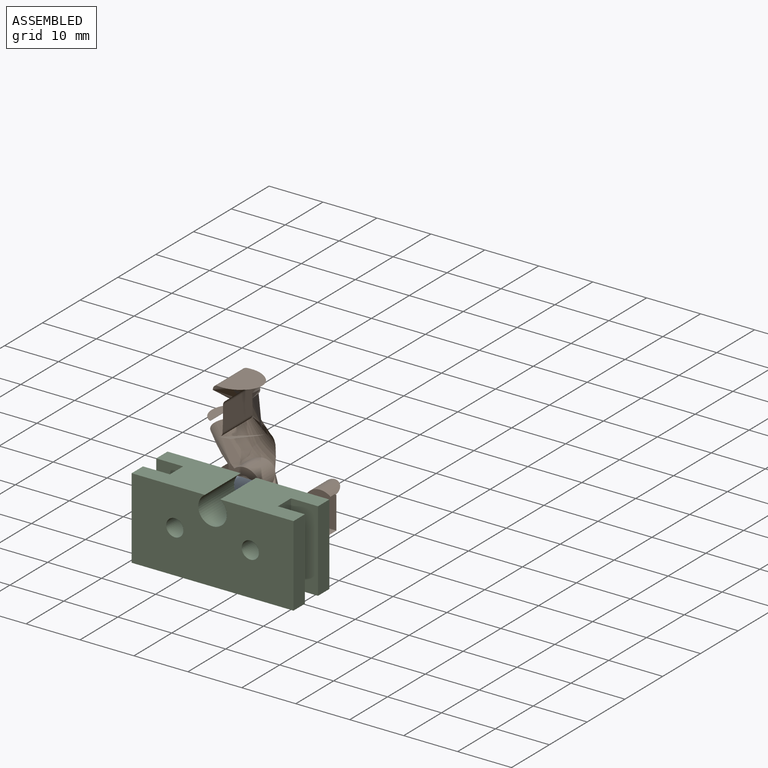
[diagram: assembled view]
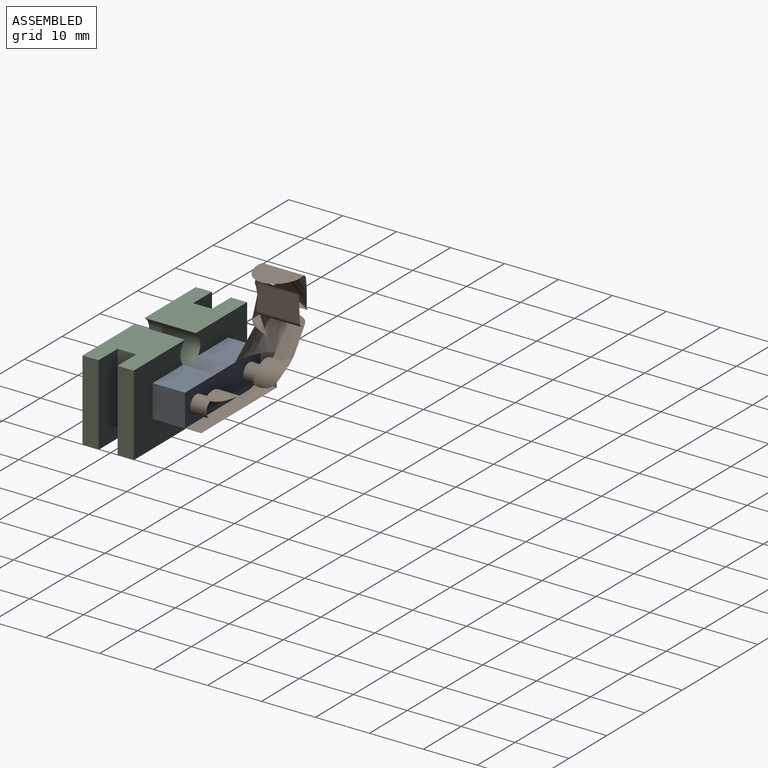
[diagram: assembled view, second angle]
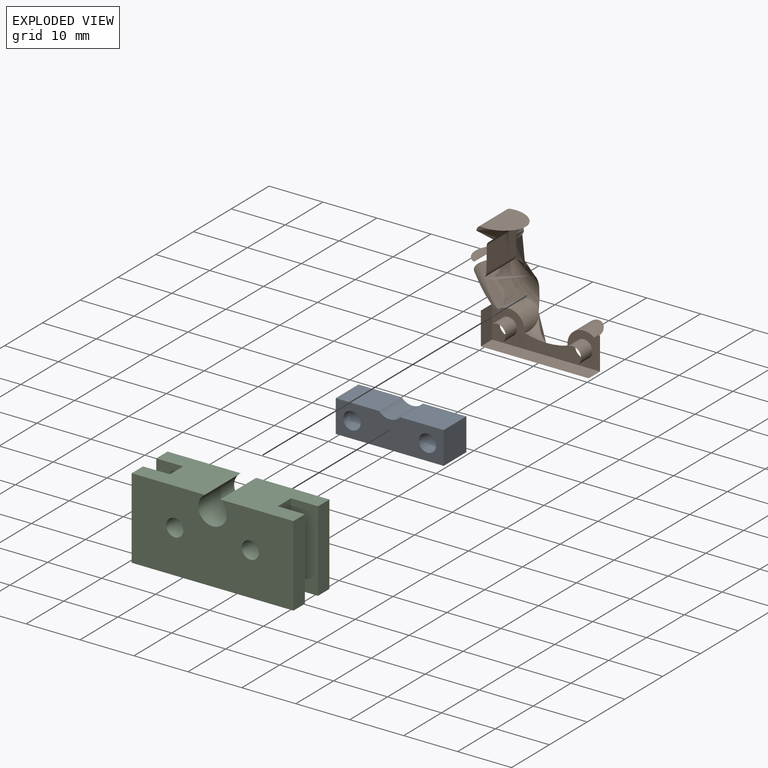
[diagram: exploded view]
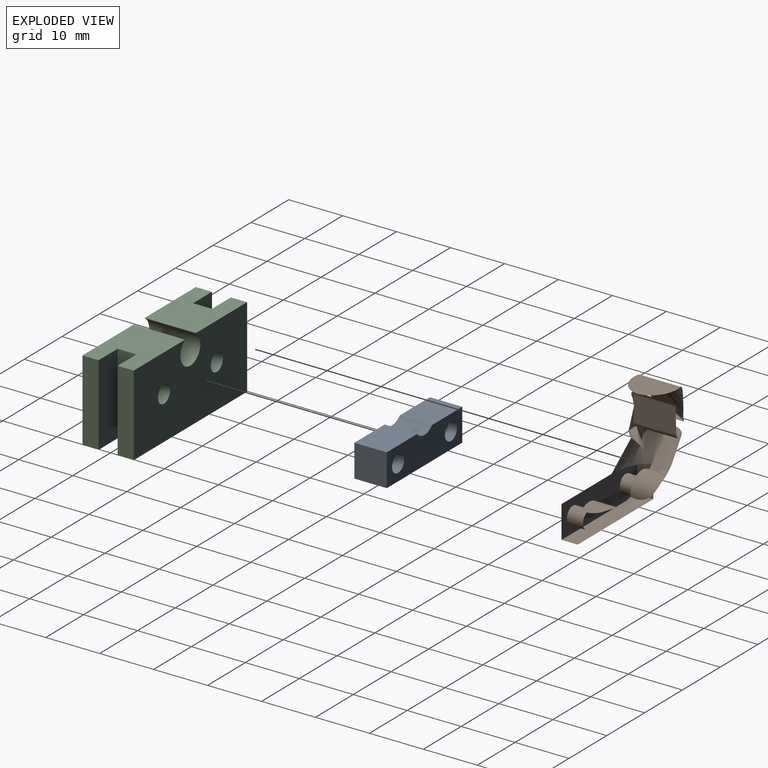
[diagram: exploded view, second angle]
ASSEMBLY  parts=3 mates=2
PART A: 10 faces, bbox 20x6x6 mm
  f0: plane 6x6mm, normal (-1,0,0), area 36mm2, adj f1,f7,f8,f9
  f1: plane 8.02x6mm, normal (0,0,1), area 48.1mm2, adj f0,f2,f8,f9
  f2: cylinder r=2.65mm len=6mm, axis (0,-1,0), area 26.8mm2, adj f1,f3,f8,f9
  f3: plane 8.02x6mm, normal (0,0,1), area 48.1mm2, adj f2,f4,f8,f9
  f4: plane 6x6mm, normal (1,0,0), area 36mm2, adj f3,f7,f8,f9
  f5: cylinder r=1.6mm len=6mm, axis (0,-1,0), area 60.3mm2, adj f8,f9
  f6: cylinder r=1.6mm len=6mm, axis (0,-1,0), area 60.3mm2, adj f8,f9
  f7: plane 20x6mm, normal (0,0,-1), area 120mm2, adj f0,f4,f8,f9
  f8: plane 20x6mm, normal (0,1,0), area 101.5mm2, adj f0,f1,f2,f3,f4,f5,f6,f7
  f9: plane 20x6mm, normal (0,-1,0), area 101.5mm2, adj f0,f1,f2,f3,f4,f5,f6,f7
PART B: 23 faces, bbox 46.3x24x47.2 mm
  f0: torus R=10mm, axis (0,-1,0), area -5.4mm2, adj f1,f2,f3,f4,f5,f6,f7,f8
  f1: plane 23.77x19.27mm, normal (0,0,1), area 18.9mm2, adj f0,f6
  f2: plane 10x3mm, normal (0,0,1), area 6mm2, adj f0,f4,f10,f11
  f3: torus R=10mm, axis (0,-1,0), area 34.5mm2, adj f0,f4,f12,f13,f14,f15,f16,f17
  f4: plane 20x6.05mm, normal (0,1,0), area 70mm2, adj f0,f2,f3,f5,f10,f14,f15,f19
  f5: cylinder r=3.05mm len=5.07mm, axis (0,-1,0), area 28.8mm2, adj f0,f4
  f6: cylinder r=1mm len=7.97mm, axis (0,-1,0), area 12.4mm2, adj f0,f1,f7
  f7: plane 7.97x4.5mm, normal (-1,0,0), area 35.2mm2, adj f0,f6,f8
  f8: cylinder r=1mm len=7.78mm, axis (0,-1,0), area 12mm2, adj f0,f7,f9
  f9: plane 7.2x2.36mm, normal (0,0,1), area 12.1mm2, adj f0,f8
  f10: plane 6x3mm, normal (-1,0,0), area 18mm2, adj f2,f4,f11,f21
  f11: plane 20x6mm, normal (0,-1,0), area 103.9mm2, adj f2,f10,f14,f19,f20,f21,f22
  f12: plane 23.75x20.5mm, normal (1,0,0), area 34.6mm2, adj f3,f13,f17
  f13: cylinder r=1mm len=7.69mm, axis (0,-1,0), area 11.5mm2, adj f3,f12,f16
  f14: plane 10x3mm, normal (0,0,1), area 6mm2, adj f3,f4,f11,f20
  f15: cylinder r=3.05mm len=5.07mm, axis (0,-1,0), area 28.8mm2, adj f3,f4
  f16: plane 6.62x1.78mm, normal (0,0,-1), area 8.3mm2, adj f3,f13
  f17: cylinder r=1mm len=7.85mm, axis (0,-1,0), area 12mm2, adj f3,f12,f18
  f18: plane 8.01x5.56mm, normal (0,0,-1), area 35.8mm2, adj f3,f17
  f19: cylinder r=1.6mm len=3.2mm, axis (0,1,0), area 30.2mm2, adj f4,f11
  f20: plane 6x3mm, normal (1,0,0), area 18mm2, adj f4,f11,f14,f21
  f21: plane 20x3mm, normal (0,0,-1), area 60mm2, adj f4,f10,f11,f20
  f22: cylinder r=1.6mm len=3.2mm, axis (0,1,0), area 30.2mm2, adj f4,f11
PART C: 18 faces, bbox 30x9.5x15 mm
  f0: plane 13.57x9.5mm, normal (0,0,1), area 111.4mm2, adj f2,f5,f7,f9,f10,f13,f14,f17
  f1: plane 13.57x9.5mm, normal (0,0,1), area 111.4mm2, adj f4,f5,f6,f9,f10,f11,f14,f17
  f2: plane 10x3.5mm, normal (-1,0,0), area 35mm2, adj f0,f3,f5,f10
  f3: plane 20x3.5mm, normal (0,0,-1), area 70mm2, adj f2,f4,f5,f10
  f4: plane 10x3.5mm, normal (1,0,0), area 35mm2, adj f1,f3,f5,f10
  f5: plane 30x15mm, normal (0,1,0), area 250mm2, adj f0,f1,f2,f3,f4,f6,f7,f8
  f6: plane 15x3mm, normal (1,0,0), area 45mm2, adj f1,f5,f8,f9
  f7: plane 15x3mm, normal (-1,0,0), area 45mm2, adj f0,f5,f8,f9
  f8: plane 30x3mm, normal (0,0,-1), area 90mm2, adj f5,f6,f7,f9
  f9: plane 30x15mm, normal (0,-1,0), area 412.6mm2, adj f0,f1,f6,f7,f8,f15,f16,f17
  f10: plane 30x15mm, normal (0,-1,0), area 250mm2, adj f0,f1,f2,f3,f4,f11,f12,f13
  f11: plane 15x3mm, normal (1,0,0), area 45mm2, adj f1,f10,f12,f14
  f12: plane 30x3mm, normal (0,0,-1), area 90mm2, adj f10,f11,f13,f14
  f13: plane 15x3mm, normal (-1,0,0), area 45mm2, adj f0,f10,f12,f14
  f14: plane 30x15mm, normal (0,1,0), area 412.6mm2, adj f0,f1,f11,f12,f13,f15,f16,f17
  f15: cylinder r=1.6mm len=9.5mm, axis (0,1,0), area 95.5mm2, adj f9,f14
  f16: cylinder r=1.6mm len=9.5mm, axis (0,1,0), area 95.5mm2, adj f9,f14
  f17: cylinder r=2.65mm len=9.5mm, axis (0,-1,0), area 129.6mm2, adj f0,f1,f9,f14
PLACE A t=(16.48,12.34,2.37)mm
PLACE B t=(16.48,-0.66,3.85)mm
PLACE C t=(16.48,12.34,2.37)mm
MATE fastened C.f15 <-> A.f5  axis (0,1,0) through (9.48,15.34,0.37)mm
MATE fastened A.f5 <-> B.f5  axis (0,1,0) through (9.48,21.34,0.37)mm
